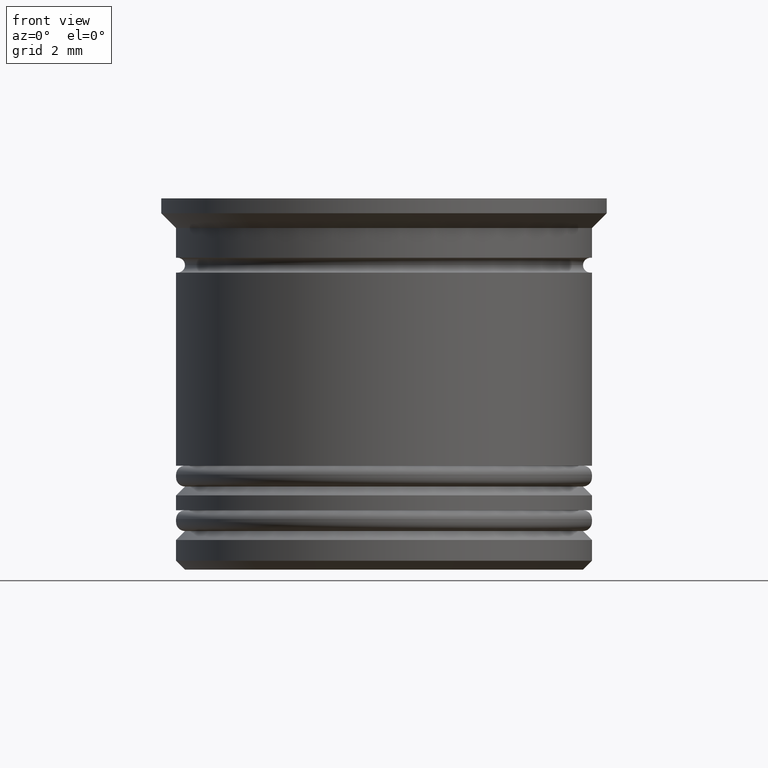
[diagram: clean part render]
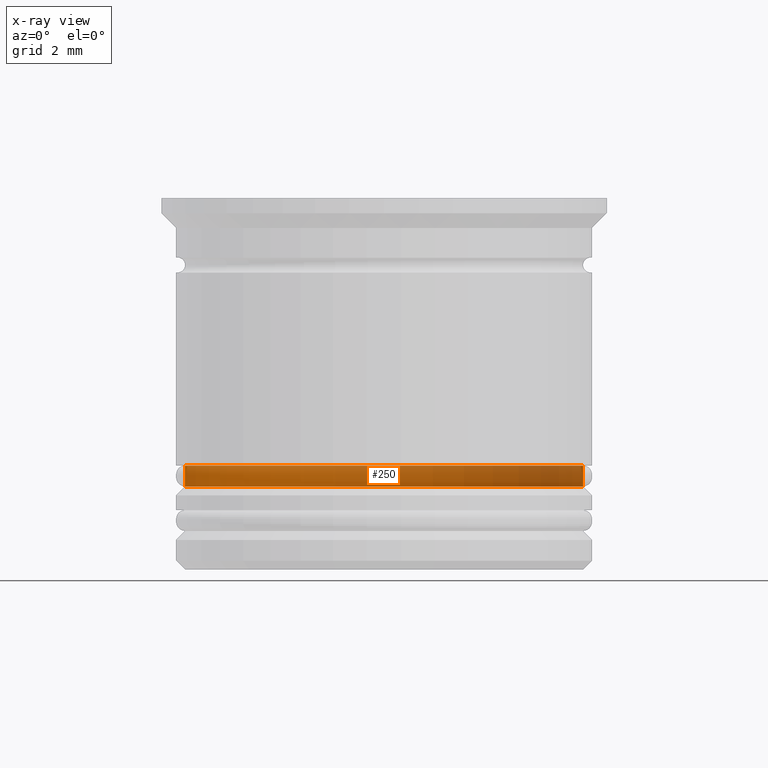
[diagram: x-ray — body ghosted, one internal face saturated and labeled with its STEP entity id]
A machine part, front view, then the same camera in x-ray: the body is ghosted and one INTERNAL B-rep face — a face not visible from any outside direction — is saturated and labeled: STEP entity #250.
In plain terms, the highlighted cylindrical surface (partial cylindrical patch) has radius 6.7 mm, axis along (-0, -0, 1).
Its self-contained STEP definition (entity closure, byte-faithful):
#64 = CARTESIAN_POINT ( 'NONE',  ( -6.700000000000001066, 8.205133554287267548E-16, -9.700000000000008171 ) ) ;
#148 = AXIS2_PLACEMENT_3D ( 'NONE', #1809, #1363, #598 ) ;
#250 = ADVANCED_FACE ( 'NONE', ( #1449 ), #590, .T. ) ;
#256 = CIRCLE ( 'NONE', #1292, 6.700000000000001066 ) ;
#258 = DIRECTION ( 'NONE',  ( -0.000000000000000000, -0.000000000000000000, 1.000000000000000000 ) ) ;
#306 = EDGE_CURVE ( 'NONE', #823, #1142, #650, .T. ) ;
#320 = DIRECTION ( 'NONE',  ( -0.000000000000000000, -0.000000000000000000, 1.000000000000000000 ) ) ;
#440 = CARTESIAN_POINT ( 'NONE',  ( 0.000000000000000000, 0.000000000000000000, -9.700000000000008171 ) ) ;
#444 = VERTEX_POINT ( 'NONE', #64 ) ;
#449 = CIRCLE ( 'NONE', #1411, 6.700000000000001066 ) ;
#463 = LINE ( 'NONE', #1085, #1263 ) ;
#590 = CYLINDRICAL_SURFACE ( 'NONE', #148, 6.700000000000001066 ) ;
#598 = DIRECTION ( 'NONE',  ( 1.000000000000000000, 0.000000000000000000, 0.000000000000000000 ) ) ;
#640 = CARTESIAN_POINT ( 'NONE',  ( 0.000000000000000000, 0.000000000000000000, -9.000000000000001776 ) ) ;
#650 = LINE ( 'NONE', #1079, #1792 ) ;
#653 = CARTESIAN_POINT ( 'NONE',  ( 6.700000000000001066, 0.000000000000000000, -9.700000000000008171 ) ) ;
#715 = ORIENTED_EDGE ( 'NONE', *, *, #1712, .T. ) ;
#742 = EDGE_CURVE ( 'NONE', #823, #444, #449, .T. ) ;
#823 = VERTEX_POINT ( 'NONE', #653 ) ;
#859 = ORIENTED_EDGE ( 'NONE', *, *, #742, .T. ) ;
#1036 = ORIENTED_EDGE ( 'NONE', *, *, #306, .F. ) ;
#1079 = CARTESIAN_POINT ( 'NONE',  ( 6.700000000000001066, 0.000000000000000000, 0.000000000000000000 ) ) ;
#1085 = CARTESIAN_POINT ( 'NONE',  ( -6.700000000000001066, 8.205133554287267548E-16, 0.000000000000000000 ) ) ;
#1087 = EDGE_CURVE ( 'NONE', #1142, #1532, #256, .T. ) ;
#1101 = DIRECTION ( 'NONE',  ( 1.000000000000000000, 0.000000000000000000, 0.000000000000000000 ) ) ;
#1142 = VERTEX_POINT ( 'NONE', #1833 ) ;
#1184 = CARTESIAN_POINT ( 'NONE',  ( -6.700000000000001066, 8.205133554287267548E-16, -9.000000000000001776 ) ) ;
#1253 = DIRECTION ( 'NONE',  ( -0.000000000000000000, -0.000000000000000000, 1.000000000000000000 ) ) ;
#1263 = VECTOR ( 'NONE', #320, 1000.000000000000000 ) ;
#1292 = AXIS2_PLACEMENT_3D ( 'NONE', #640, #1253, #1101 ) ;
#1363 = DIRECTION ( 'NONE',  ( -0.000000000000000000, -0.000000000000000000, 1.000000000000000000 ) ) ;
#1411 = AXIS2_PLACEMENT_3D ( 'NONE', #440, #258, #1953 ) ;
#1449 = FACE_OUTER_BOUND ( 'NONE', #1895, .T. ) ;
#1532 = VERTEX_POINT ( 'NONE', #1184 ) ;
#1545 = DIRECTION ( 'NONE',  ( -0.000000000000000000, -0.000000000000000000, 1.000000000000000000 ) ) ;
#1632 = ORIENTED_EDGE ( 'NONE', *, *, #1087, .F. ) ;
#1712 = EDGE_CURVE ( 'NONE', #444, #1532, #463, .T. ) ;
#1792 = VECTOR ( 'NONE', #1545, 1000.000000000000000 ) ;
#1809 = CARTESIAN_POINT ( 'NONE',  ( 0.000000000000000000, 0.000000000000000000, 0.000000000000000000 ) ) ;
#1833 = CARTESIAN_POINT ( 'NONE',  ( 6.700000000000001066, 0.000000000000000000, -9.000000000000001776 ) ) ;
#1895 = EDGE_LOOP ( 'NONE', ( #859, #715, #1632, #1036 ) ) ;
#1953 = DIRECTION ( 'NONE',  ( -1.000000000000000000, 0.000000000000000000, 0.000000000000000000 ) ) ;